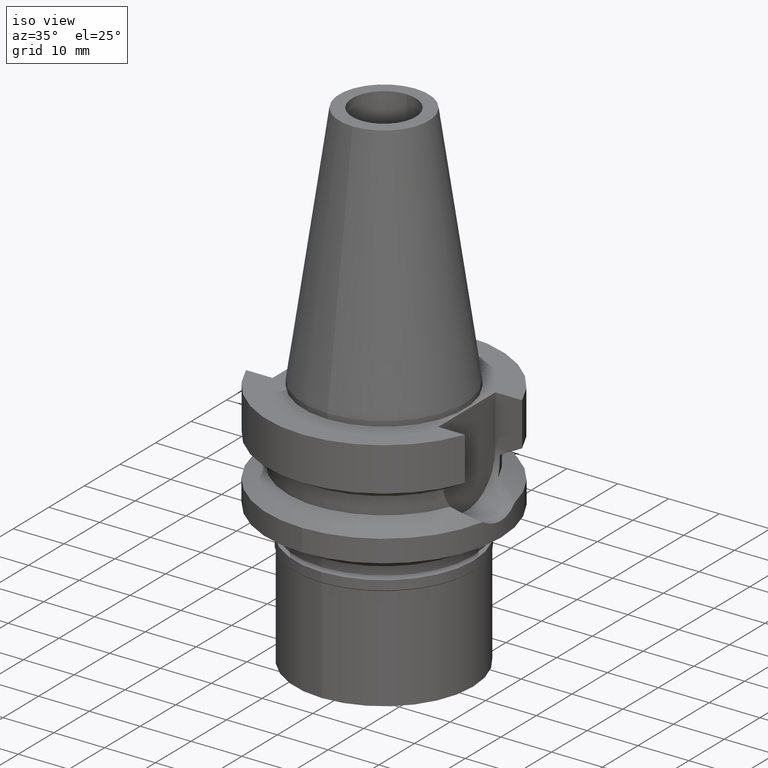
[diagram: clean part render]
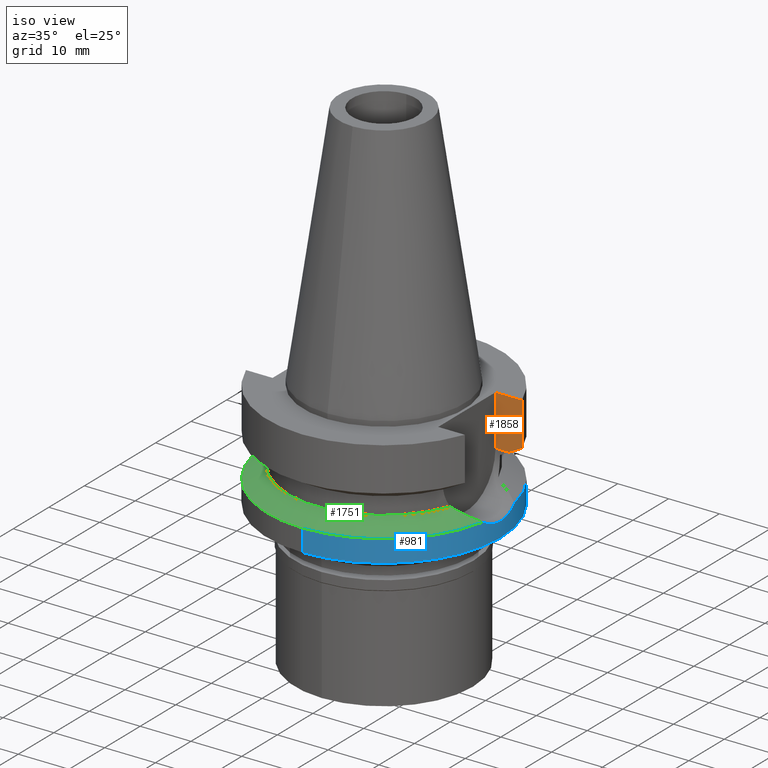
[diagram: same view with three faces highlighted in distinct colors, each labeled with its STEP entity id]
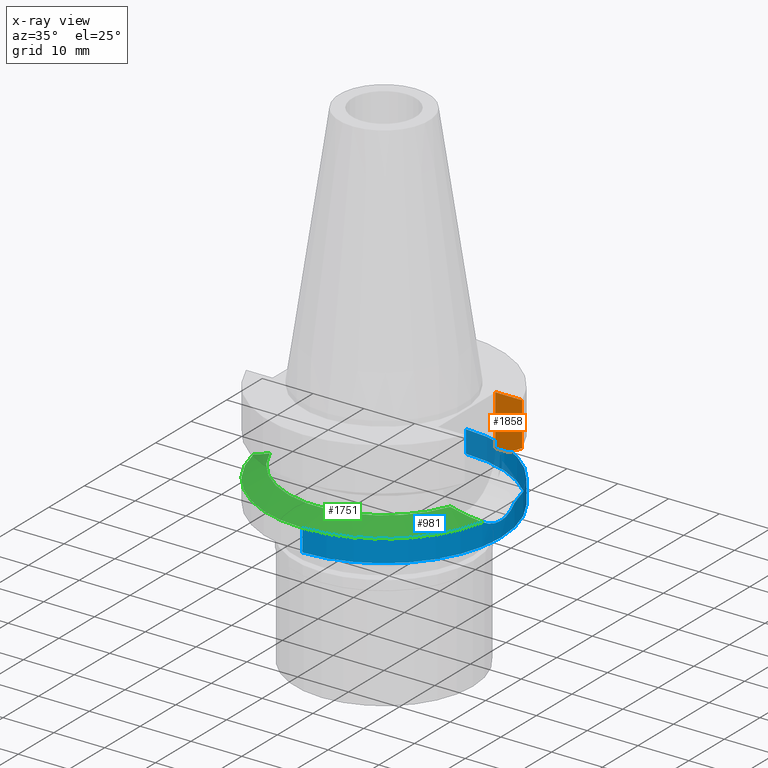
[diagram: x-ray of the same camera — body ghosted, the three highlighted faces saturated]
A machine part, iso view with three faces highlighted in distinct colors.
The next image is the same camera in x-ray (body ghosted, the three faces saturated) — at least one of them is partly hidden behind the body in this view.
Their STEP definitions:

[orange] entity #1858 — the highlighted planar face has unit normal (0, 1, 0).
#45 = B_SPLINE_CURVE_WITH_KNOTS ( 'NONE', 3,
 ( #829, #1559, #1746, #1073 ),
 .UNSPECIFIED., .F., .F.,
 ( 4, 4 ),
 ( 0.0000000000000000000, 1.000000000000000000 ),
 .UNSPECIFIED. ) ;
#86 = EDGE_CURVE ( 'NONE', #462, #228, #45, .T. ) ;
#91 = VECTOR ( 'NONE', #124, 1000.000000000000000 ) ;
#124 = DIRECTION ( 'NONE',  ( -1.000000000000000000, -9.380896855521999773E-14, 0.0000000000000000000 ) ) ;
#144 = CARTESIAN_POINT ( 'NONE',  ( 16.29999999999999716, 8.050000000000000711, -1.000000000000000000 ) ) ;
#197 = FACE_OUTER_BOUND ( 'NONE', #2911, .T. ) ;
#228 = VERTEX_POINT ( 'NONE', #2818 ) ;
#293 = EDGE_CURVE ( 'NONE', #462, #2319, #2864, .T. ) ;
#404 = LINE ( 'NONE', #2074, #418 ) ;
#418 = VECTOR ( 'NONE', #2348, 1000.000000000000000 ) ;
#462 = VERTEX_POINT ( 'NONE', #1315 ) ;
#670 = ORIENTED_EDGE ( 'NONE', *, *, #1167, .T. ) ;
#749 = ORIENTED_EDGE ( 'NONE', *, *, #2895, .T. ) ;
#782 = ORIENTED_EDGE ( 'NONE', *, *, #1600, .T. ) ;
#829 = CARTESIAN_POINT ( 'NONE',  ( 21.54524325238000060, 8.049999577379001181, -9.567211146543000311 ) ) ;
#927 = DIRECTION ( 'NONE',  ( 1.000000000000000000, 0.0000000000000000000, 0.0000000000000000000 ) ) ;
#1045 = CARTESIAN_POINT ( 'NONE',  ( 16.29999999999999716, 8.050000000000000711, -10.94999999999999929 ) ) ;
#1073 = CARTESIAN_POINT ( 'NONE',  ( 18.96738966530000070, 8.049994318182998043, -10.95000099923000114 ) ) ;
#1148 = VECTOR ( 'NONE', #1160, 1000.000000000000000 ) ;
#1155 = CARTESIAN_POINT ( 'NONE',  ( 23.00000000000000000, 8.050000000000000711, -10.94999999999999929 ) ) ;
#1160 = DIRECTION ( 'NONE',  ( 0.0000000000000000000, 0.0000000000000000000, -1.000000000000000000 ) ) ;
#1167 = EDGE_CURVE ( 'NONE', #1213, #1659, #2519, .T. ) ;
#1213 = VERTEX_POINT ( 'NONE', #1381 ) ;
#1296 = AXIS2_PLACEMENT_3D ( 'NONE', #1155, #2084, #927 ) ;
#1315 = CARTESIAN_POINT ( 'NONE',  ( 21.54524325238000060, 8.049999577379001181, -9.567211146543000311 ) ) ;
#1381 = CARTESIAN_POINT ( 'NONE',  ( 16.29999999999999716, 8.050000000000000711, -1.000000000000000000 ) ) ;
#1559 = CARTESIAN_POINT ( 'NONE',  ( 20.64098922513857204, 8.049999155450739963, -10.05625859774404063 ) ) ;
#1600 = EDGE_CURVE ( 'NONE', #2319, #1213, #1706, .T. ) ;
#1617 = CARTESIAN_POINT ( 'NONE',  ( 21.54524325238000060, 8.049999577379001181, -9.567211146543000311 ) ) ;
#1657 = ORIENTED_EDGE ( 'NONE', *, *, #293, .T. ) ;
#1659 = VERTEX_POINT ( 'NONE', #1045 ) ;
#1660 = DIRECTION ( 'NONE',  ( -1.843134610276992765E-08, 4.933012972513982769E-08, 0.9999999999999985567 ) ) ;
#1706 = LINE ( 'NONE', #2209, #91 ) ;
#1746 = CARTESIAN_POINT ( 'NONE',  ( 19.78174442298433533, 8.049991903556987793, -10.51718567366341262 ) ) ;
#1772 = PLANE ( 'NONE',  #1296 ) ;
#1858 = ADVANCED_FACE ( 'NONE', ( #197 ), #1772, .F. ) ;
#2074 = CARTESIAN_POINT ( 'NONE',  ( 16.29999999999999716, 8.050000000000000711, -10.94999999999999929 ) ) ;
#2084 = DIRECTION ( 'NONE',  ( -0.0000000000000000000, 1.000000000000000000, 0.0000000000000000000 ) ) ;
#2209 = CARTESIAN_POINT ( 'NONE',  ( 21.54524309446999908, 8.050000000000000711, -1.000000000000000000 ) ) ;
#2319 = VERTEX_POINT ( 'NONE', #2777 ) ;
#2348 = DIRECTION ( 'NONE',  ( 0.9999999999976612042, -2.130104031153920346E-06, -3.746083735727856140E-07 ) ) ;
#2519 = LINE ( 'NONE', #144, #1148 ) ;
#2601 = ORIENTED_EDGE ( 'NONE', *, *, #86, .F. ) ;
#2777 = CARTESIAN_POINT ( 'NONE',  ( 21.54524309446999908, 8.050000000000000711, -1.000000000000000000 ) ) ;
#2818 = CARTESIAN_POINT ( 'NONE',  ( 18.96738966530000070, 8.049994318182998043, -10.95000099923000114 ) ) ;
#2828 = VECTOR ( 'NONE', #1660, 1000.000000000000114 ) ;
#2864 = LINE ( 'NONE', #1617, #2828 ) ;
#2895 = EDGE_CURVE ( 'NONE', #1659, #228, #404, .T. ) ;
#2911 = EDGE_LOOP ( 'NONE', ( #1657, #782, #670, #749, #2601 ) ) ;

[blue] entity #981 — the highlighted cylindrical surface (partial cylindrical patch) has radius 23 mm, axis along (0, 0, -1).
#6 = VECTOR ( 'NONE', #1649, 1000.000000000000000 ) ;
#59 = ORIENTED_EDGE ( 'NONE', *, *, #745, .T. ) ;
#114 = VERTEX_POINT ( 'NONE', #1544 ) ;
#134 = CARTESIAN_POINT ( 'NONE',  ( 22.98995836557874739, -0.7843392692817930945, -18.97134382188604107 ) ) ;
#217 = CARTESIAN_POINT ( 'NONE',  ( 22.79383355051302118, 3.078315225049684578, -18.39085367476280197 ) ) ;
#266 = CARTESIAN_POINT ( 'NONE',  ( 22.62310124107877485, 4.150502759624608906, -17.85045619107866344 ) ) ;
#321 = VERTEX_POINT ( 'NONE', #1578 ) ;
#322 = DIRECTION ( 'NONE',  ( 0.0000000000000000000, 0.0000000000000000000, -1.000000000000000000 ) ) ;
#344 = DIRECTION ( 'NONE',  ( 0.0000000000000000000, 0.0000000000000000000, -1.000000000000000000 ) ) ;
#523 = ORIENTED_EDGE ( 'NONE', *, *, #561, .T. ) ;
#561 = EDGE_CURVE ( 'NONE', #321, #1424, #1528, .T. ) ;
#594 = DIRECTION ( 'NONE',  ( 0.0000000000000000000, 1.000000000000000000, 0.0000000000000000000 ) ) ;
#610 = DIRECTION ( 'NONE',  ( 0.0000000000000000000, 0.0000000000000000000, 1.000000000000000000 ) ) ;
#633 = CARTESIAN_POINT ( 'NONE',  ( 22.94992847154027871, -1.566574891783574008, -18.85597573331736854 ) ) ;
#667 = EDGE_CURVE ( 'NONE', #2083, #114, #1920, .T. ) ;
#674 = CARTESIAN_POINT ( 'NONE',  ( 22.55786346208000026, -4.488072640470000430, -17.63279163029000074 ) ) ;
#735 = EDGE_CURVE ( 'NONE', #1337, #2762, #2952, .T. ) ;
#742 = CARTESIAN_POINT ( 'NONE',  ( 22.71385684287556472, 3.621312071679509526, -18.14216954094995060 ) ) ;
#745 = EDGE_CURVE ( 'NONE', #2762, #2622, #1248, .T. ) ;
#766 = AXIS2_PLACEMENT_3D ( 'NONE', #1485, #322, #2648 ) ;
#824 = CARTESIAN_POINT ( 'NONE',  ( 0.0000000000000000000, -23.00000000000000000, -17.63279163029000074 ) ) ;
#837 = CARTESIAN_POINT ( 'NONE',  ( 0.0000000000000000000, 0.0000000000000000000, -22.00000000000000000 ) ) ;
#847 = EDGE_CURVE ( 'NONE', #321, #2622, #2115, .T. ) ;
#867 = CARTESIAN_POINT ( 'NONE',  ( 22.84079056710278621, -2.707979719164963051, -18.53352870095185878 ) ) ;
#981 = ADVANCED_FACE ( 'NONE', ( #2042 ), #1964, .T. ) ;
#1024 = CARTESIAN_POINT ( 'NONE',  ( 0.0000000000000000000, 0.0000000000000000000, -17.63279163029000074 ) ) ;
#1093 = EDGE_CURVE ( 'NONE', #1424, #2083, #1893, .T. ) ;
#1094 = CARTESIAN_POINT ( 'NONE',  ( 23.00000000000723333, -0.3931911481576128575, -19.00000000000000355 ) ) ;
#1164 = CIRCLE ( 'NONE', #766, 23.00000000000001066 ) ;
#1206 = EDGE_LOOP ( 'NONE', ( #1841, #1481, #59, #2292, #523, #1974, #2173 ) ) ;
#1248 = CIRCLE ( 'NONE', #2026, 23.00000000000000000 ) ;
#1337 = VERTEX_POINT ( 'NONE', #2841 ) ;
#1424 = VERTEX_POINT ( 'NONE', #2409 ) ;
#1481 = ORIENTED_EDGE ( 'NONE', *, *, #735, .T. ) ;
#1485 = CARTESIAN_POINT ( 'NONE',  ( 0.0000000000000000000, 0.0000000000000000000, -17.63279163029000074 ) ) ;
#1528 = CIRCLE ( 'NONE', #2342, 23.00000000000000000 ) ;
#1539 = DIRECTION ( 'NONE',  ( 0.0000000000000000000, 2.359143140496999862E-14, -1.000000000000000000 ) ) ;
#1544 = CARTESIAN_POINT ( 'NONE',  ( 22.55786346208000026, -4.488072640470000430, -17.63279163029000074 ) ) ;
#1578 = CARTESIAN_POINT ( 'NONE',  ( 0.0000000000000000000, 23.00000000000000000, -17.63279163029000074 ) ) ;
#1646 = CARTESIAN_POINT ( 'NONE',  ( 22.99999999998553335, 0.7863138039261430290, -19.00000000000000355 ) ) ;
#1649 = DIRECTION ( 'NONE',  ( 0.0000000000000000000, -2.359143140496999862E-14, -1.000000000000000000 ) ) ;
#1671 = CARTESIAN_POINT ( 'NONE',  ( 23.00000000000000000, 4.232519921043999887E-10, -19.00000000000000000 ) ) ;
#1783 = CARTESIAN_POINT ( 'NONE',  ( 22.79381226286461271, -3.078472090980107101, -18.39078719136217188 ) ) ;
#1841 = ORIENTED_EDGE ( 'NONE', *, *, #1910, .T. ) ;
#1843 = CARTESIAN_POINT ( 'NONE',  ( 22.95874426753883668, 1.573051968706697945, -18.88435296437215527 ) ) ;
#1863 = CARTESIAN_POINT ( 'NONE',  ( 0.0000000000000000000, 23.00000000000000000, -17.63279163029000074 ) ) ;
#1873 = CARTESIAN_POINT ( 'NONE',  ( 22.86244889163762295, 2.518845490430802414, -18.59839467765815257 ) ) ;
#1893 = B_SPLINE_CURVE_WITH_KNOTS ( 'NONE', 3,
 ( #2380, #2614, #266, #2850, #742, #2355, #217, #2112, #1873, #1843, #1646, #1671 ),
 .UNSPECIFIED., .F., .F.,
 ( 4, 2, 2, 2, 2, 4 ),
 ( 0.0000000000000000000, 0.1250000000000001665, 0.2500000000000001110, 0.3750000000000000555, 0.5000000000000000000, 1.000000000000000000 ),
 .UNSPECIFIED. ) ;
#1910 = EDGE_CURVE ( 'NONE', #114, #1337, #1164, .T. ) ;
#1920 = B_SPLINE_CURVE_WITH_KNOTS ( 'NONE', 3,
 ( #2264, #1094, #134, #633, #2022, #2048, #867, #1783, #2308, #3031, #3012, #674 ),
 .UNSPECIFIED., .F., .F.,
 ( 4, 2, 2, 2, 2, 4 ),
 ( 0.0000000000000000000, 0.2500000000000002776, 0.5000000000000004441, 0.6250000000000006661, 0.7500000000000008882, 1.000000000000000000 ),
 .UNSPECIFIED. ) ;
#1946 = CARTESIAN_POINT ( 'NONE',  ( 23.00000000000000000, 4.232519921043999887E-10, -19.00000000000000000 ) ) ;
#1948 = DIRECTION ( 'NONE',  ( 0.0000000000000000000, -1.000000000000000000, 0.0000000000000000000 ) ) ;
#1964 = CYLINDRICAL_SURFACE ( 'NONE', #2087, 23.00000000000000000 ) ;
#1971 = DIRECTION ( 'NONE',  ( 0.0000000000000000000, -1.000000000000000000, 0.0000000000000000000 ) ) ;
#1974 = ORIENTED_EDGE ( 'NONE', *, *, #1093, .T. ) ;
#2022 = CARTESIAN_POINT ( 'NONE',  ( 22.92042989842834544, -1.949409637206165113, -18.77057097035693189 ) ) ;
#2026 = AXIS2_PLACEMENT_3D ( 'NONE', #837, #610, #1971 ) ;
#2042 = FACE_OUTER_BOUND ( 'NONE', #1206, .T. ) ;
#2048 = CARTESIAN_POINT ( 'NONE',  ( 22.86230834354261532, -2.520205025465598769, -18.59797934863608759 ) ) ;
#2083 = VERTEX_POINT ( 'NONE', #1946 ) ;
#2087 = AXIS2_PLACEMENT_3D ( 'NONE', #2910, #2946, #1948 ) ;
#2112 = CARTESIAN_POINT ( 'NONE',  ( 22.84081224508685182, 2.707797728405240356, -18.53359268873723664 ) ) ;
#2115 = LINE ( 'NONE', #1863, #6 ) ;
#2173 = ORIENTED_EDGE ( 'NONE', *, *, #667, .T. ) ;
#2264 = CARTESIAN_POINT ( 'NONE',  ( 23.00000000000000000, 4.232519921043999887E-10, -19.00000000000000000 ) ) ;
#2292 = ORIENTED_EDGE ( 'NONE', *, *, #847, .F. ) ;
#2308 = CARTESIAN_POINT ( 'NONE',  ( 22.76863498825484911, -3.259318128265310310, -18.31338158796291182 ) ) ;
#2342 = AXIS2_PLACEMENT_3D ( 'NONE', #1024, #344, #594 ) ;
#2355 = CARTESIAN_POINT ( 'NONE',  ( 22.76837446587207126, 3.261030202399505029, -18.31256904520534690 ) ) ;
#2380 = CARTESIAN_POINT ( 'NONE',  ( 22.55786346208000026, 4.488072640470000430, -17.63279163029000074 ) ) ;
#2409 = CARTESIAN_POINT ( 'NONE',  ( 22.55786346208000026, 4.488072640470000430, -17.63279163029000074 ) ) ;
#2614 = CARTESIAN_POINT ( 'NONE',  ( 22.59106657759191705, 4.321187786720205537, -17.74486924510534891 ) ) ;
#2622 = VERTEX_POINT ( 'NONE', #2969 ) ;
#2648 = DIRECTION ( 'NONE',  ( 0.9807766722643714852, -0.1951335930638943839, 0.0000000000000000000 ) ) ;
#2674 = CARTESIAN_POINT ( 'NONE',  ( 0.0000000000000000000, -23.00000000000000000, -22.00000000000000000 ) ) ;
#2762 = VERTEX_POINT ( 'NONE', #2674 ) ;
#2841 = CARTESIAN_POINT ( 'NONE',  ( 0.0000000000000000000, -23.00000000000000000, -17.63279163029000074 ) ) ;
#2850 = CARTESIAN_POINT ( 'NONE',  ( 22.68434997914057050, 3.801532447002946125, -18.04864874534121100 ) ) ;
#2885 = VECTOR ( 'NONE', #1539, 1000.000000000000000 ) ;
#2910 = CARTESIAN_POINT ( 'NONE',  ( 0.0000000000000000000, 0.0000000000000000000, 0.0000000000000000000 ) ) ;
#2946 = DIRECTION ( 'NONE',  ( 0.0000000000000000000, 0.0000000000000000000, -1.000000000000000000 ) ) ;
#2952 = LINE ( 'NONE', #824, #2885 ) ;
#2969 = CARTESIAN_POINT ( 'NONE',  ( 0.0000000000000000000, 23.00000000000000000, -22.00000000000000000 ) ) ;
#3012 = CARTESIAN_POINT ( 'NONE',  ( 22.62426420320401022, -4.154330526195971096, -17.85692832867927393 ) ) ;
#3031 = CARTESIAN_POINT ( 'NONE',  ( 22.68599641825596080, -3.805409579712057955, -18.05509290539615463 ) ) ;

[green] entity #1751 — the highlighted conical surface has half-angle 60 deg.
#114 = VERTEX_POINT ( 'NONE', #1544 ) ;
#322 = DIRECTION ( 'NONE',  ( 0.0000000000000000000, 0.0000000000000000000, -1.000000000000000000 ) ) ;
#346 = CARTESIAN_POINT ( 'NONE',  ( 20.50401121620501854, -5.694633743155140593, -16.63981131308070616 ) ) ;
#364 = CARTESIAN_POINT ( 'NONE',  ( -21.45982386200909531, -5.194414995525713508, -17.10116348280026344 ) ) ;
#422 = ORIENTED_EDGE ( 'NONE', *, *, #1910, .F. ) ;
#493 = B_SPLINE_CURVE_WITH_KNOTS ( 'NONE', 3,
 ( #2724, #1736, #1782, #2460, #618, #1545, #885, #2231, #1323, #346, #2263, #1058, #1800, #652 ),
 .UNSPECIFIED., .F., .F.,
 ( 4, 2, 2, 1, 1, 2, 2, 4 ),
 ( 0.0000000000000000000, 0.2500000000000093259, 0.3750000000000148770, 0.4375000000000168754, 0.4687500000000178191, 0.4843750000000170974, 0.5000000000000164313, 1.000000000000000000 ),
 .UNSPECIFIED. ) ;
#589 = AXIS2_PLACEMENT_3D ( 'NONE', #1125, #627, #2093 ) ;
#618 = CARTESIAN_POINT ( 'NONE',  ( 19.70226252926495292, -6.057253226929671719, -16.25399263439647868 ) ) ;
#627 = DIRECTION ( 'NONE',  ( 0.0000000000000000000, 0.0000000000000000000, -1.000000000000000000 ) ) ;
#652 = CARTESIAN_POINT ( 'NONE',  ( 22.55786346208000026, -4.488072640470000430, -17.63279163029000074 ) ) ;
#661 = CARTESIAN_POINT ( 'NONE',  ( 17.75736593456000278, -6.758398853743999624, -15.32339055352999857 ) ) ;
#766 = AXIS2_PLACEMENT_3D ( 'NONE', #1485, #322, #2648 ) ;
#818 = CARTESIAN_POINT ( 'NONE',  ( -20.60264198532023272, -5.646731402149804957, -16.68735032510217664 ) ) ;
#836 = CIRCLE ( 'NONE', #589, 23.00000000000000000 ) ;
#849 = CARTESIAN_POINT ( 'NONE',  ( -17.75736593456000278, -6.758398853743999624, -15.32339055352999857 ) ) ;
#861 = CARTESIAN_POINT ( 'NONE',  ( 0.0000000000000000000, 0.0000000000000000000, -15.32339055352999857 ) ) ;
#885 = CARTESIAN_POINT ( 'NONE',  ( 20.19153038979839820, -5.841858521801971627, -16.48930123571699369 ) ) ;
#918 = CONICAL_SURFACE ( 'NONE', #2288, 21.00000000000000000, 1.047197551196400456 ) ;
#1058 = CARTESIAN_POINT ( 'NONE',  ( 21.31631661974315506, -5.300112642608965530, -17.03133332296672364 ) ) ;
#1080 = CARTESIAN_POINT ( 'NONE',  ( 0.0000000000000000000, 0.0000000000000000000, -16.47809109191000232 ) ) ;
#1114 = CARTESIAN_POINT ( 'NONE',  ( -22.55786346208000026, -4.488072640470000430, -17.63279163029000074 ) ) ;
#1125 = CARTESIAN_POINT ( 'NONE',  ( 0.0000000000000000000, 0.0000000000000000000, -17.63279163029000074 ) ) ;
#1164 = CIRCLE ( 'NONE', #766, 23.00000000000001066 ) ;
#1179 = EDGE_CURVE ( 'NONE', #1337, #1669, #836, .T. ) ;
#1261 = VERTEX_POINT ( 'NONE', #661 ) ;
#1268 = CARTESIAN_POINT ( 'NONE',  ( -22.55786346208000026, -4.488072640470000430, -17.63279163029000074 ) ) ;
#1307 = CARTESIAN_POINT ( 'NONE',  ( -20.64984966352434981, -5.623512643467095451, -16.71011022722139927 ) ) ;
#1320 = DIRECTION ( 'NONE',  ( 0.0000000000000000000, 0.0000000000000000000, 1.000000000000000000 ) ) ;
#1323 = CARTESIAN_POINT ( 'NONE',  ( 20.45251596850605935, -5.719317997126709407, -16.61499849028090026 ) ) ;
#1337 = VERTEX_POINT ( 'NONE', #2841 ) ;
#1469 = ORIENTED_EDGE ( 'NONE', *, *, #2205, .F. ) ;
#1485 = CARTESIAN_POINT ( 'NONE',  ( 0.0000000000000000000, 0.0000000000000000000, -17.63279163029000074 ) ) ;
#1513 = CARTESIAN_POINT ( 'NONE',  ( -20.88305429756819009, -5.506591954577538139, -16.82258827816833957 ) ) ;
#1544 = CARTESIAN_POINT ( 'NONE',  ( 22.55786346208000026, -4.488072640470000430, -17.63279163029000074 ) ) ;
#1545 = CARTESIAN_POINT ( 'NONE',  ( 20.03025237532184732, -5.914163211905716366, -16.41170414185550896 ) ) ;
#1560 = CARTESIAN_POINT ( 'NONE',  ( -20.58068014195352191, -5.657471808259226798, -16.67676328603816671 ) ) ;
#1669 = VERTEX_POINT ( 'NONE', #1268 ) ;
#1736 = CARTESIAN_POINT ( 'NONE',  ( 18.28162680296246734, -6.596815326894484244, -15.57309290900918874 ) ) ;
#1748 = CARTESIAN_POINT ( 'NONE',  ( -21.96049970938659968, -4.898275830528114660, -17.34331144553240378 ) ) ;
#1751 = ADVANCED_FACE ( 'NONE', ( #3018 ), #918, .T. ) ;
#1763 = CARTESIAN_POINT ( 'NONE',  ( -17.75736593456000278, -6.758398853743999624, -15.32339055352999857 ) ) ;
#1767 = VERTEX_POINT ( 'NONE', #849 ) ;
#1782 = CARTESIAN_POINT ( 'NONE',  ( 18.77690731347827224, -6.423841684040871414, -15.81003598776193897 ) ) ;
#1800 = CARTESIAN_POINT ( 'NONE',  ( 21.98388215699148418, -4.902505725805879955, -17.35446396507062872 ) ) ;
#1891 = B_SPLINE_CURVE_WITH_KNOTS ( 'NONE', 3,
 ( #1114, #2989, #1748, #364, #2046, #1513, #2281, #1307, #818, #1560, #2706, #2972, #1763 ),
 .UNSPECIFIED., .F., .F.,
 ( 4, 2, 1, 1, 1, 2, 2, 4 ),
 ( 0.0000000000000000000, 0.2500000000000122680, 0.3750000000000175415, 0.4375000000000194289, 0.4687500000000202061, 0.4843750000000202616, 0.5000000000000203171, 1.000000000000000000 ),
 .UNSPECIFIED. ) ;
#1910 = EDGE_CURVE ( 'NONE', #114, #1337, #1164, .T. ) ;
#1924 = ORIENTED_EDGE ( 'NONE', *, *, #2219, .F. ) ;
#2046 = CARTESIAN_POINT ( 'NONE',  ( -21.20071043284410450, -5.340395306004294795, -16.97592649601026338 ) ) ;
#2067 = ORIENTED_EDGE ( 'NONE', *, *, #2670, .F. ) ;
#2093 = DIRECTION ( 'NONE',  ( 0.0000000000000000000, -1.000000000000000000, 0.0000000000000000000 ) ) ;
#2205 = EDGE_CURVE ( 'NONE', #1669, #1767, #1891, .T. ) ;
#2219 = EDGE_CURVE ( 'NONE', #1261, #114, #493, .T. ) ;
#2231 = CARTESIAN_POINT ( 'NONE',  ( 20.37493348338862731, -5.756260175061492568, -16.57762116208457570 ) ) ;
#2263 = CARTESIAN_POINT ( 'NONE',  ( 20.53138092004099846, -5.681420578161565871, -16.65300141717032290 ) ) ;
#2281 = CARTESIAN_POINT ( 'NONE',  ( -20.72038694628438193, -5.588603777115227267, -16.74412233958972607 ) ) ;
#2288 = AXIS2_PLACEMENT_3D ( 'NONE', #1080, #2978, #2296 ) ;
#2296 = DIRECTION ( 'NONE',  ( 0.0000000000000000000, -1.000000000000000000, 0.0000000000000000000 ) ) ;
#2299 = ORIENTED_EDGE ( 'NONE', *, *, #1179, .F. ) ;
#2460 = CARTESIAN_POINT ( 'NONE',  ( 19.47635754242202566, -6.150621144567203658, -16.14549395938378495 ) ) ;
#2473 = DIRECTION ( 'NONE',  ( 0.0000000000000000000, -1.000000000000000000, 0.0000000000000000000 ) ) ;
#2648 = DIRECTION ( 'NONE',  ( 0.9807766722643714852, -0.1951335930638943839, 0.0000000000000000000 ) ) ;
#2670 = EDGE_CURVE ( 'NONE', #1767, #1261, #2680, .T. ) ;
#2680 = CIRCLE ( 'NONE', #2995, 19.00000000000000000 ) ;
#2706 = CARTESIAN_POINT ( 'NONE',  ( -19.73851785229727795, -6.066581931745615108, -16.27084571488028075 ) ) ;
#2724 = CARTESIAN_POINT ( 'NONE',  ( 17.75736593456000278, -6.758398853743999624, -15.32339055352999857 ) ) ;
#2841 = CARTESIAN_POINT ( 'NONE',  ( 0.0000000000000000000, -23.00000000000000000, -17.63279163029000074 ) ) ;
#2972 = CARTESIAN_POINT ( 'NONE',  ( -18.80591980629395010, -6.435221895667083025, -15.82281057017217663 ) ) ;
#2978 = DIRECTION ( 'NONE',  ( 0.0000000000000000000, 0.0000000000000000000, -1.000000000000000000 ) ) ;
#2989 = CARTESIAN_POINT ( 'NONE',  ( -22.27088225970162938, -4.695282359813631068, -17.49363238013246047 ) ) ;
#2995 = AXIS2_PLACEMENT_3D ( 'NONE', #861, #1320, #2473 ) ;
#3018 = FACE_OUTER_BOUND ( 'NONE', #3070, .T. ) ;
#3070 = EDGE_LOOP ( 'NONE', ( #2299, #422, #1924, #2067, #1469 ) ) ;